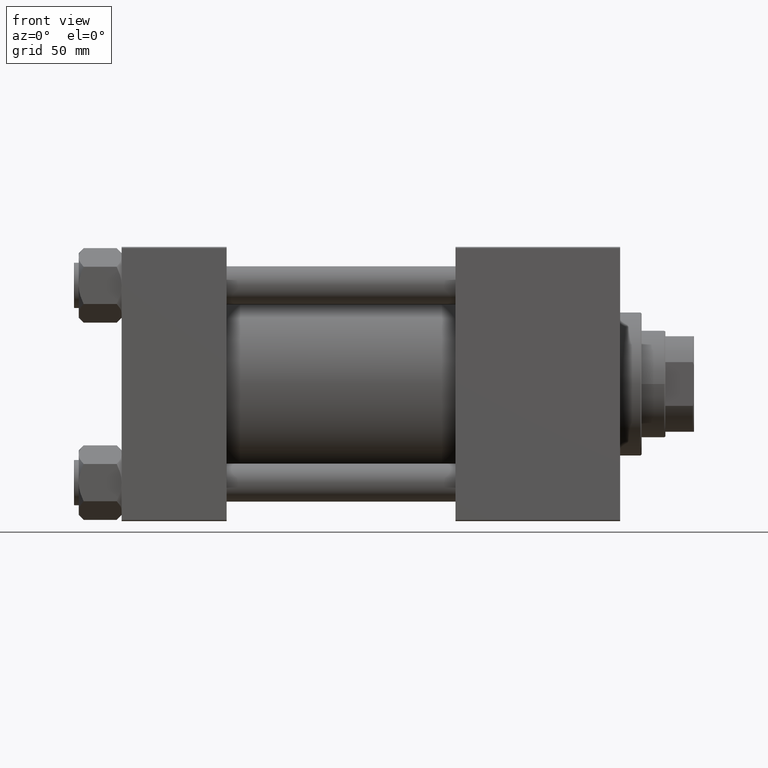
[diagram: clean part render]
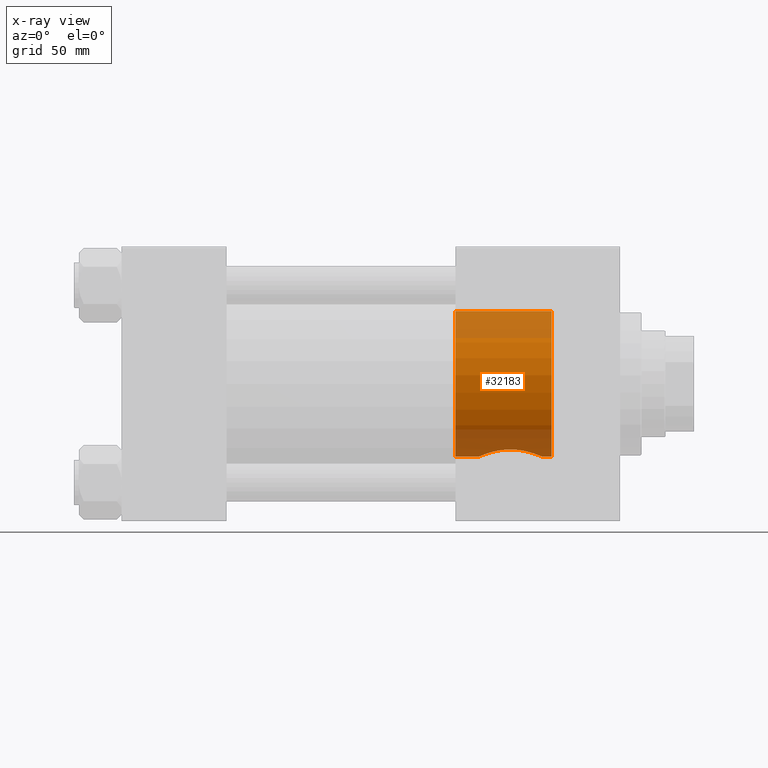
[diagram: x-ray — body ghosted, one internal face saturated and labeled with its STEP entity id]
A machine part, front view, then the same camera in x-ray: the body is ghosted and one INTERNAL B-rep face — a face not visible from any outside direction — is saturated and labeled: STEP entity #32183.
In plain terms, the highlighted cylindrical surface (partial cylindrical patch) has radius 30.5 mm, axis along (1, 0, 0).
Its self-contained STEP definition (entity closure, byte-faithful):
#208 = CARTESIAN_POINT ( 'NONE',  ( 153.3580458352676885, -9.054406913280258706, -29.12674974908796699 ) ) ;
#665 = CARTESIAN_POINT ( 'NONE',  ( 180.3000000000000114, 0.000000000000000000, -30.50000000000000000 ) ) ;
#2613 = CARTESIAN_POINT ( 'NONE',  ( 140.0000000000000000, 3.735172737399427541E-15, 30.50000000000000000 ) ) ;
#2648 = CYLINDRICAL_SURFACE ( 'NONE', #19670, 30.50000000000000000 ) ;
#2896 = DIRECTION ( 'NONE',  ( 1.000000000000000000, -0.000000000000000000, -0.000000000000000000 ) ) ;
#3055 = CARTESIAN_POINT ( 'NONE',  ( 166.4537769000338301, -12.76825092159768005, -27.69912004121968252 ) ) ;
#3575 = CARTESIAN_POINT ( 'NONE',  ( 167.2838867571578589, -12.51419676702961148, -27.81482270176899263 ) ) ;
#4068 = CARTESIAN_POINT ( 'NONE',  ( 165.1799748998507766, -13.04627916250819908, -27.56906926130731250 ) ) ;
#4593 = CARTESIAN_POINT ( 'NONE',  ( 176.2200000000000273, -2.040173530099202743E-20, -30.50000000000000000 ) ) ;
#4936 = DIRECTION ( 'NONE',  ( 1.000000000000000000, -0.000000000000000000, -0.000000000000000000 ) ) ;
#5158 = VERTEX_POINT ( 'NONE', #4593 ) ;
#5288 = LINE ( 'NONE', #13200, #27669 ) ;
#5511 = EDGE_CURVE ( 'NONE', #5158, #7822, #5288, .T. ) ;
#6234 = CARTESIAN_POINT ( 'NONE',  ( 18.23297269524121234, 0.000000000000000000, 0.000000000000000000 ) ) ;
#6241 = ORIENTED_EDGE ( 'NONE', *, *, #27142, .T. ) ;
#6283 = VERTEX_POINT ( 'NONE', #2613 ) ;
#6337 = CARTESIAN_POINT ( 'NONE',  ( 180.3000000000000114, 0.000000000000000000, 0.000000000000000000 ) ) ;
#6898 = CARTESIAN_POINT ( 'NONE',  ( 156.3563546431008717, -11.46182805055125620, -28.26908420738159222 ) ) ;
#7054 = CIRCLE ( 'NONE', #35749, 30.50000000000000000 ) ;
#7152 = CARTESIAN_POINT ( 'NONE',  ( 171.7476024807662611, -9.948642908172358190, -28.83879766247067877 ) ) ;
#7644 = CARTESIAN_POINT ( 'NONE',  ( 175.7865286154097930, -3.471528681234169245, -30.31422367464547918 ) ) ;
#7822 = VERTEX_POINT ( 'NONE', #665 ) ;
#7901 = CARTESIAN_POINT ( 'NONE',  ( 151.5464187942307319, -6.657702757070332211, -29.77360117846063758 ) ) ;
#8063 = CARTESIAN_POINT ( 'NONE',  ( 140.0000000000000000, 0.000000000000000000, 0.000000000000000000 ) ) ;
#10255 = VECTOR ( 'NONE', #35087, 1000.000000000000000 ) ;
#10728 = CARTESIAN_POINT ( 'NONE',  ( 154.9359808178920730, -10.48439370246421731, -28.64280652864379917 ) ) ;
#10970 = CARTESIAN_POINT ( 'NONE',  ( 150.6376809090364475, -4.704130006481638482, -30.13777036718243707 ) ) ;
#11228 = CARTESIAN_POINT ( 'NONE',  ( 149.7799999999999727, -0.8853305914797945375, -30.50000000000000000 ) ) ;
#11486 = CARTESIAN_POINT ( 'NONE',  ( 162.1158780443898308, -13.21938793416952862, -27.48631992650905786 ) ) ;
#11736 = CARTESIAN_POINT ( 'NONE',  ( 150.2319993117068293, -3.455137540533165463, -30.30659791570459660 ) ) ;
#12232 = VERTEX_POINT ( 'NONE', #25867 ) ;
#12398 = DIRECTION ( 'NONE',  ( 0.000000000000000000, 0.000000000000000000, 1.000000000000000000 ) ) ;
#13200 = CARTESIAN_POINT ( 'NONE',  ( 18.23297269524121234, 0.000000000000000000, -30.50000000000000000 ) ) ;
#13303 = EDGE_CURVE ( 'NONE', #41395, #5158, #44970, .T. ) ;
#14822 = CARTESIAN_POINT ( 'NONE',  ( 150.4883807563689118, -4.291759651082204030, -30.19948098470458575 ) ) ;
#15074 = CARTESIAN_POINT ( 'NONE',  ( 175.0336013837878397, -5.490534600637511531, -30.00443638898287091 ) ) ;
#17411 = EDGE_CURVE ( 'NONE', #6283, #29720, #48083, .T. ) ;
#18276 = DIRECTION ( 'NONE',  ( 0.000000000000000000, 0.000000000000000000, -1.000000000000000000 ) ) ;
#18684 = CARTESIAN_POINT ( 'NONE',  ( 168.9000745779882209, -11.86237421120549307, -28.10103656142622341 ) ) ;
#18933 = CARTESIAN_POINT ( 'NONE',  ( 152.2665463709840594, -7.729596063406416029, -29.50659126331700222 ) ) ;
#19185 = CARTESIAN_POINT ( 'NONE',  ( 175.5309328132961184, -4.299378174509795869, -30.20619208370726128 ) ) ;
#19442 = CARTESIAN_POINT ( 'NONE',  ( 167.6947557636227373, -12.36597221443002326, -27.88128898796227517 ) ) ;
#19603 = DIRECTION ( 'NONE',  ( -1.000000000000000000, 0.000000000000000000, -0.000000000000000000 ) ) ;
#19652 = CARTESIAN_POINT ( 'NONE',  ( 18.23297269524121234, 0.000000000000000000, -30.50000000000000000 ) ) ;
#19670 = AXIS2_PLACEMENT_3D ( 'NONE', #6234, #2896, #18276 ) ;
#19695 = CARTESIAN_POINT ( 'NONE',  ( 171.0769586213247067, -10.50066839750485670, -28.63996095294263355 ) ) ;
#22541 = CARTESIAN_POINT ( 'NONE',  ( 163.4282611383911217, -13.22030123121098555, -27.48588065662368152 ) ) ;
#22805 = CARTESIAN_POINT ( 'NONE',  ( 150.1252330640597563, -3.032800796582769909, -30.35185677671185900 ) ) ;
#23046 = CARTESIAN_POINT ( 'NONE',  ( 159.9671720014202378, -12.87481232180880575, -27.64956114675655385 ) ) ;
#23460 = EDGE_CURVE ( 'NONE', #12232, #6283, #47950, .T. ) ;
#23552 = CARTESIAN_POINT ( 'NONE',  ( 158.2995010675730612, -12.36358778692498106, -27.88233061437986748 ) ) ;
#25170 = ORIENTED_EDGE ( 'NONE', *, *, #17411, .T. ) ;
#25867 = CARTESIAN_POINT ( 'NONE',  ( 140.0000000000000000, 0.000000000000000000, -30.50000000000000000 ) ) ;
#26387 = CARTESIAN_POINT ( 'NONE',  ( 155.2821944318445446, -10.74195786085158666, -28.54691747565395943 ) ) ;
#27142 = EDGE_CURVE ( 'NONE', #29720, #7822, #7054, .T. ) ;
#27144 = CARTESIAN_POINT ( 'NONE',  ( 169.6551846396598933, -11.45468527620831267, -28.27192220920700194 ) ) ;
#27669 = VECTOR ( 'NONE', #28881, 1000.000000000000000 ) ;
#28881 = DIRECTION ( 'NONE',  ( 1.000000000000000000, -0.000000000000000000, -0.000000000000000000 ) ) ;
#29720 = VERTEX_POINT ( 'NONE', #31993 ) ;
#30249 = CARTESIAN_POINT ( 'NONE',  ( 157.1102210281448777, -11.86664554023930229, -28.09917040484757322 ) ) ;
#30502 = CARTESIAN_POINT ( 'NONE',  ( 174.4400539947568518, -6.639260050566249127, -29.77114450595016848 ) ) ;
#30743 = CARTESIAN_POINT ( 'NONE',  ( 153.9604469590067310, -9.655881393488934705, -28.93291879524301535 ) ) ;
#31002 = CARTESIAN_POINT ( 'NONE',  ( 159.5390996583176104, -12.76638286409401246, -27.69998554717495409 ) ) ;
#31778 = EDGE_LOOP ( 'NONE', ( #43906, #25170, #6241, #37931, #36637, #44866 ) ) ;
#31993 = CARTESIAN_POINT ( 'NONE',  ( 180.3000000000000114, 3.735172737399427541E-15, 30.50000000000000000 ) ) ;
#32017 = VECTOR ( 'NONE', #4936, 1000.000000000000000 ) ;
#32076 = CARTESIAN_POINT ( 'NONE',  ( 149.7800000000000011, 6.147564682044835534E-15, -30.50000000000000000 ) ) ;
#32183 = ADVANCED_FACE ( 'NONE', ( #41928 ), #2648, .F. ) ;
#33803 = DIRECTION ( 'NONE',  ( 0.000000000000000000, 0.000000000000000000, -1.000000000000000000 ) ) ;
#34362 = CARTESIAN_POINT ( 'NONE',  ( 172.9536134907683618, -8.741946199344287294, -29.22721545031311763 ) ) ;
#34620 = CARTESIAN_POINT ( 'NONE',  ( 174.8486707773159878, -5.879082431193932479, -29.93053973753962893 ) ) ;
#34875 = CARTESIAN_POINT ( 'NONE',  ( 176.1344454461879252, -1.741599333497269475, -30.46260822947750313 ) ) ;
#35087 = DIRECTION ( 'NONE',  ( 1.000000000000000000, -0.000000000000000000, -0.000000000000000000 ) ) ;
#35380 = CARTESIAN_POINT ( 'NONE',  ( 153.0710805864428039, -8.738917889067320033, -29.22327357459188590 ) ) ;
#35749 = AXIS2_PLACEMENT_3D ( 'NONE', #6337, #49507, #33803 ) ;
#36637 = ORIENTED_EDGE ( 'NONE', *, *, #13303, .F. ) ;
#37931 = ORIENTED_EDGE ( 'NONE', *, *, #5511, .F. ) ;
#38213 = CARTESIAN_POINT ( 'NONE',  ( 163.8707971486062434, -13.19864495021411877, -27.49632903481744250 ) ) ;
#38462 = CARTESIAN_POINT ( 'NONE',  ( 174.2150775797848610, -7.012538402017728600, -29.68517992239744885 ) ) ;
#38714 = CARTESIAN_POINT ( 'NONE',  ( 164.7476378202688352, -13.11137972316413780, -27.53804751008607710 ) ) ;
#39219 = CARTESIAN_POINT ( 'NONE',  ( 161.2506797857263621, -13.13278457719500381, -27.52845918261876790 ) ) ;
#39675 = LINE ( 'NONE', #19652, #10255 ) ;
#41395 = VERTEX_POINT ( 'NONE', #32076 ) ;
#41928 = FACE_OUTER_BOUND ( 'NONE', #31778, .T. ) ;
#42086 = CARTESIAN_POINT ( 'NONE',  ( 149.7800000000000011, 6.147564682044835534E-15, -30.50000000000000000 ) ) ;
#42590 = CARTESIAN_POINT ( 'NONE',  ( 154.2758824470719787, -9.941865499008191165, -28.83560624549484785 ) ) ;
#42838 = CARTESIAN_POINT ( 'NONE',  ( 176.2200000000000273, -2.040173530099202743E-20, -30.50000000000000000 ) ) ;
#42885 = EDGE_CURVE ( 'NONE', #12232, #41395, #39675, .T. ) ;
#43085 = CARTESIAN_POINT ( 'NONE',  ( 151.1389901450788784, -5.902061921074146511, -29.93445894569349974 ) ) ;
#43449 = CARTESIAN_POINT ( 'NONE',  ( 18.23297269524121234, 3.735172737399427541E-15, 30.50000000000000000 ) ) ;
#43906 = ORIENTED_EDGE ( 'NONE', *, *, #23460, .T. ) ;
#44625 = AXIS2_PLACEMENT_3D ( 'NONE', #8063, #19603, #12398 ) ;
#44866 = ORIENTED_EDGE ( 'NONE', *, *, #42885, .F. ) ;
#44970 = B_SPLINE_CURVE_WITH_KNOTS ( 'NONE', 3,
 ( #42086, #11228, #45924, #22805, #11736, #14822, #10970, #43085, #7901, #18933, #50322, #35380, #208, #30743, #42590, #10728, #26387, #6898, #30249, #23552, #46432, #31002, #23046, #39219, #11486, #22541, #38213, #38714, #4068, #50575, #3055, #3575, #19442, #18684, #27144, #19695, #7152, #34362, #50063, #38462, #30502, #34620, #15074, #19185, #7644, #34875, #46701, #42838 ),
 .UNSPECIFIED., .F., .F.,
 ( 4, 2, 2, 2, 2, 2, 2, 2, 2, 2, 2, 2, 2, 2, 2, 2, 2, 2, 2, 2, 2, 2, 2, 4 ),
 ( 7.677360305709819566E-19, 0.002616098461671927979, 0.003924147692507900208, 0.005232196923343872437, 0.007848295385015779599, 0.009156344615851757032, 0.01046439384668773100, 0.01177244307752370669, 0.01308049230835968066, 0.01569659077003163553, 0.01700464000086761643, 0.01831268923170359039, 0.02092878769337554526, 0.02223683692421152616, 0.02354488615504750013, 0.02485293538588348103, 0.02616098461671945499, 0.02877708307839140986, 0.03139318154006336126, 0.03400928000173532306, 0.03531732923257129703, 0.03662537846340727793, 0.03924147692507923280, 0.04185757538675119460 ),
 .UNSPECIFIED. ) ;
#45924 = CARTESIAN_POINT ( 'NONE',  ( 149.8680193242562382, -1.753824631493098307, -30.46155710112499548 ) ) ;
#46432 = CARTESIAN_POINT ( 'NONE',  ( 158.7057454272865868, -12.51070502699270826, -27.81639787021162391 ) ) ;
#46701 = CARTESIAN_POINT ( 'NONE',  ( 176.2199999999999989, -0.8722128882349591272, -30.49999999999999289 ) ) ;
#47950 = CIRCLE ( 'NONE', #44625, 30.50000000000000000 ) ;
#48083 = LINE ( 'NONE', #43449, #32017 ) ;
#49507 = DIRECTION ( 'NONE',  ( 1.000000000000000000, 0.000000000000000000, 0.000000000000000000 ) ) ;
#50063 = CARTESIAN_POINT ( 'NONE',  ( 173.4952304289513165, -8.084527078603692019, -29.41823973957058769 ) ) ;
#50322 = CARTESIAN_POINT ( 'NONE',  ( 152.5258438300172656, -8.077386899213500726, -29.41299415509606163 ) ) ;
#50575 = CARTESIAN_POINT ( 'NONE',  ( 166.0330449471944974, -12.87471665312959601, -27.64960489812616728 ) ) ;